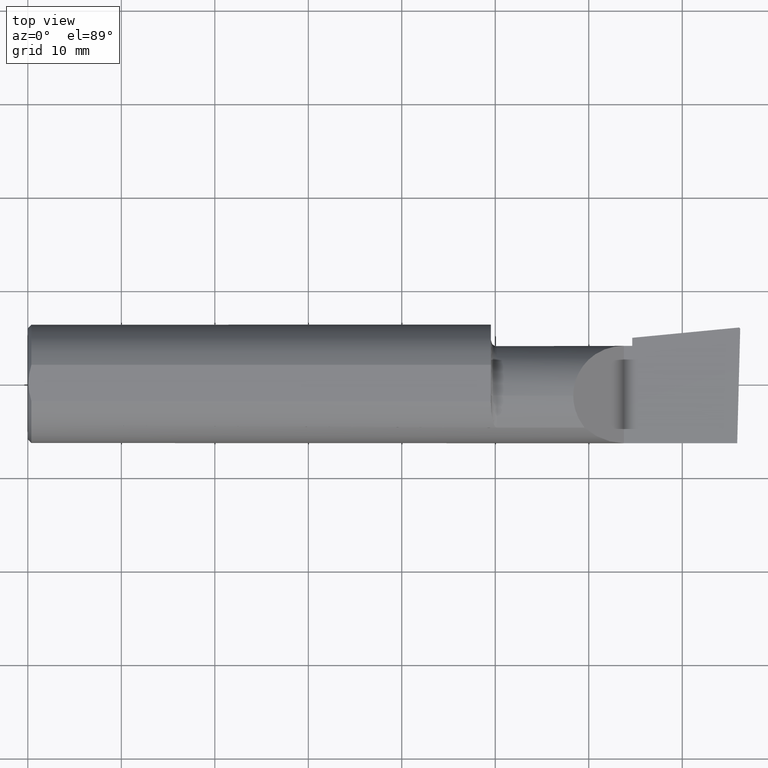
[diagram: clean part render]
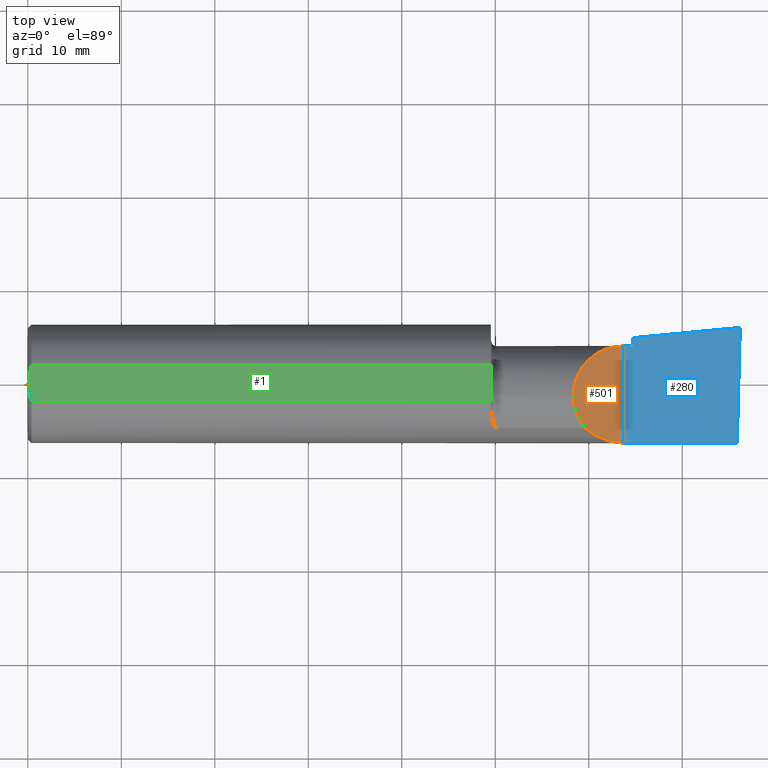
[diagram: same view with three faces highlighted in distinct colors, each labeled with its STEP entity id]
A machine part, top view with three faces highlighted in distinct colors.
Their STEP definitions:

[orange] entity #501 — the highlighted planar face has unit normal (-0.7071, 0, -0.7071).
#12 = EDGE_CURVE ( 'NONE', #95, #238, #275, .T. ) ;
#17 = ORIENTED_EDGE ( 'NONE', *, *, #169, .F. ) ;
#33 = CARTESIAN_POINT ( 'NONE',  ( 2.448145753305722927, -0.2498500000000000165, 0.06185424669427665861 ) ) ;
#51 = CARTESIAN_POINT ( 'NONE',  ( 2.390325100969863392, -0.2278791102234763166, 0.1196748990301357285 ) ) ;
#95 = VERTEX_POINT ( 'NONE', #771 ) ;
#106 = CARTESIAN_POINT ( 'NONE',  ( 2.344079160038586185, -0.1868028301886760500, 0.1659208399614119644 ) ) ;
#108 = DIRECTION ( 'NONE',  ( -0.7071067811865436870, 0.000000000000000000, -0.7071067811865514585 ) ) ;
#169 = EDGE_CURVE ( 'NONE', #238, #240, #774, .T. ) ;
#198 = CARTESIAN_POINT ( 'NONE',  ( 2.344079160038586185, -0.1868028301886760500, 0.1659208399614119644 ) ) ;
#199 = ORIENTED_EDGE ( 'NONE', *, *, #417, .T. ) ;
#230 = CARTESIAN_POINT ( 'NONE',  ( 2.510000000000000231, -0.2498499999999999610, 6.000769315822035917E-17 ) ) ;
#238 = VERTEX_POINT ( 'NONE', #198 ) ;
#240 = VERTEX_POINT ( 'NONE', #597 ) ;
#263 = DIRECTION ( 'NONE',  ( -0.7071067811865513475, 0.000000000000000000, 0.7071067811865435759 ) ) ;
#275 =( BOUNDED_CURVE ( )  B_SPLINE_CURVE ( 3, ( #230, #33, #51, #106 ),
 .UNSPECIFIED., .F., .T. ) 
 B_SPLINE_CURVE_WITH_KNOTS ( ( 4, 4 ),
 ( 4.712388980384689674, 5.438654041019590935 ),
 .UNSPECIFIED. ) 
 CURVE ( )  GEOMETRIC_REPRESENTATION_ITEM ( )  RATIONAL_B_SPLINE_CURVE ( ( 1.000000000000000000, 0.9565258159410974237, 0.9565258159410974237, 1.000000000000000000 ) ) 
 REPRESENTATION_ITEM ( '' )  );
#279 = CARTESIAN_POINT ( 'NONE',  ( 2.510000000000000231, 0.1601499999999999035, 6.000769315822035917E-17 ) ) ;
#287 = CARTESIAN_POINT ( 'NONE',  ( 2.385139620819824113, 0.1601499999999999591, 0.1248603791801747992 ) ) ;
#299 =( BOUNDED_CURVE ( )  B_SPLINE_CURVE ( 3, ( #755, #354, #287, #484 ),
 .UNSPECIFIED., .F., .T. ) 
 B_SPLINE_CURVE_WITH_KNOTS ( ( 4, 4 ),
 ( 0.000000000000000000, 1.570796326794896558 ),
 .UNSPECIFIED. ) 
 CURVE ( )  GEOMETRIC_REPRESENTATION_ITEM ( )  RATIONAL_B_SPLINE_CURVE ( ( 1.000000000000000000, 0.8047378541243649375, 0.8047378541243649375, 1.000000000000000000 ) ) 
 REPRESENTATION_ITEM ( '' )  );
#331 = ORIENTED_EDGE ( 'NONE', *, *, #12, .F. ) ;
#350 = VECTOR ( 'NONE', #787, 39.37007874015748143 ) ;
#354 = CARTESIAN_POINT ( 'NONE',  ( 2.296849999999997838, 0.07186037918017477988, 0.2131500000000000061 ) ) ;
#383 = FACE_OUTER_BOUND ( 'NONE', #754, .T. ) ;
#388 = LINE ( 'NONE', #861, #350 ) ;
#408 = CARTESIAN_POINT ( 'NONE',  ( 2.296849999999997838, -0.05299999999999998462, 0.2131499999999999506 ) ) ;
#417 = EDGE_CURVE ( 'NONE', #95, #618, #388, .T. ) ;
#465 = CARTESIAN_POINT ( 'NONE',  ( 2.313215146136121447, -0.1485302233682029571, 0.1967848538638767297 ) ) ;
#484 = CARTESIAN_POINT ( 'NONE',  ( 2.510000000000000231, 0.1601499999999999035, 6.000769315822035917E-17 ) ) ;
#501 = ADVANCED_FACE ( 'NONE', ( #383 ), #650, .F. ) ;
#523 = CARTESIAN_POINT ( 'NONE',  ( 2.296849999999997838, -0.1021668565906553305, 0.2131500000000000061 ) ) ;
#593 = AXIS2_PLACEMENT_3D ( 'NONE', #782, #108, #263 ) ;
#597 = CARTESIAN_POINT ( 'NONE',  ( 2.296849999999997838, -0.05299999999999998462, 0.2131499999999999506 ) ) ;
#618 = VERTEX_POINT ( 'NONE', #279 ) ;
#650 = PLANE ( 'NONE',  #593 ) ;
#654 = EDGE_CURVE ( 'NONE', #240, #618, #299, .T. ) ;
#671 = CARTESIAN_POINT ( 'NONE',  ( 2.344079160038586185, -0.1868028301886760500, 0.1659208399614119644 ) ) ;
#744 = ORIENTED_EDGE ( 'NONE', *, *, #654, .F. ) ;
#754 = EDGE_LOOP ( 'NONE', ( #17, #331, #199, #744 ) ) ;
#755 = CARTESIAN_POINT ( 'NONE',  ( 2.296849999999997838, -0.05299999999999998462, 0.2131499999999999506 ) ) ;
#771 = CARTESIAN_POINT ( 'NONE',  ( 2.510000000000000231, -0.2498499999999999610, 6.000769315822035917E-17 ) ) ;
#774 =( BOUNDED_CURVE ( )  B_SPLINE_CURVE ( 3, ( #671, #465, #523, #408 ),
 .UNSPECIFIED., .F., .T. ) 
 B_SPLINE_CURVE_WITH_KNOTS ( ( 4, 4 ),
 ( 5.604538515477369032, 6.283185307179586232 ),
 .UNSPECIFIED. ) 
 CURVE ( )  GEOMETRIC_REPRESENTATION_ITEM ( )  RATIONAL_B_SPLINE_CURVE ( ( 1.000000000000000000, 0.9619867256453048521, 0.9619867256453048521, 1.000000000000000000 ) ) 
 REPRESENTATION_ITEM ( '' )  );
#782 = CARTESIAN_POINT ( 'NONE',  ( 2.510000000000000231, -0.2500000000000000555, 6.000769315822035917E-17 ) ) ;
#787 = DIRECTION ( 'NONE',  ( -0.000000000000000000, 1.000000000000000000, -0.000000000000000000 ) ) ;
#861 = CARTESIAN_POINT ( 'NONE',  ( 2.510000000000000231, -0.2500000000000000555, 6.000769315822035917E-17 ) ) ;

[blue] entity #280 — the highlighted planar face has unit normal (-0, 0, -1).
#3 = DIRECTION ( 'NONE',  ( 0.9953961983671787417, 0.09584575252022459191, -2.606391986280347847E-16 ) ) ;
#16 = EDGE_CURVE ( 'NONE', #224, #489, #374, .T. ) ;
#25 = FACE_OUTER_BOUND ( 'NONE', #579, .T. ) ;
#47 = DIRECTION ( 'NONE',  ( 0.02617694830786375729, 0.9996573249755575929, -6.752493720234686897E-18 ) ) ;
#59 =( BOUNDED_CURVE ( )  B_SPLINE_CURVE ( 3, ( #65, #789, #739, #653 ),
 .UNSPECIFIED., .F., .T. ) 
 B_SPLINE_CURVE_WITH_KNOTS ( ( 4, 4 ),
 ( 1.953092279228479944, 3.511516179717668606 ),
 .UNSPECIFIED. ) 
 CURVE ( )  GEOMETRIC_REPRESENTATION_ITEM ( )  RATIONAL_B_SPLINE_CURVE ( ( 1.000000000000000000, 0.8076450242550571312, 0.8076450242550571312, 1.000000000000000000 ) ) 
 REPRESENTATION_ITEM ( '' )  );
#65 = CARTESIAN_POINT ( 'NONE',  ( 2.999806390372777187, 0.2307563466314208889, -6.819658003834520064E-17 ) ) ;
#73 = ORIENTED_EDGE ( 'NONE', *, *, #784, .F. ) ;
#74 = CARTESIAN_POINT ( 'NONE',  ( 2.993512870449312135, 0.2374961668063718667, -6.829619984160658046E-17 ) ) ;
#77 = CARTESIAN_POINT ( 'NONE',  ( 2.545000000000000373, -0.2500000000000000555, 5.084312937251844195E-17 ) ) ;
#95 = VERTEX_POINT ( 'NONE', #771 ) ;
#96 = LINE ( 'NONE', #297, #243 ) ;
#127 = VECTOR ( 'NONE', #47, 39.37007874015748854 ) ;
#134 = VERTEX_POINT ( 'NONE', #266 ) ;
#143 = ORIENTED_EDGE ( 'NONE', *, *, #347, .F. ) ;
#171 = VERTEX_POINT ( 'NONE', #516 ) ;
#173 = CARTESIAN_POINT ( 'NONE',  ( 2.993310817358674214, 0.2374961668063718667, -6.831130739536553237E-17 ) ) ;
#174 = LINE ( 'NONE', #77, #705 ) ;
#191 = EDGE_CURVE ( 'NONE', #489, #588, #59, .T. ) ;
#220 = VECTOR ( 'NONE', #368, 39.37007874015748143 ) ;
#224 = VERTEX_POINT ( 'NONE', #460 ) ;
#243 = VECTOR ( 'NONE', #367, 39.37007874015748143 ) ;
#266 = CARTESIAN_POINT ( 'NONE',  ( 2.545000000000000373, 0.1943384830701264110, 7.172376958449230963E-16 ) ) ;
#279 = CARTESIAN_POINT ( 'NONE',  ( 2.510000000000000231, 0.1601499999999999035, 6.000769315822035917E-17 ) ) ;
#280 = ADVANCED_FACE ( 'NONE', ( #25 ), #428, .F. ) ;
#286 = ORIENTED_EDGE ( 'NONE', *, *, #191, .T. ) ;
#297 = CARTESIAN_POINT ( 'NONE',  ( 1.878049121262586821E-31, -0.2498499999999999610, 7.172378389328440442E-16 ) ) ;
#310 = CARTESIAN_POINT ( 'NONE',  ( 2.993108609909221229, 0.2374864346074009314, -6.825836045055233299E-17 ) ) ;
#345 = DIRECTION ( 'NONE',  ( 0.000000000000000000, 1.000000000000000000, 0.000000000000000000 ) ) ;
#347 = EDGE_CURVE ( 'NONE', #618, #171, #770, .T. ) ;
#350 = VECTOR ( 'NONE', #787, 39.37007874015748143 ) ;
#352 = EDGE_CURVE ( 'NONE', #171, #134, #174, .T. ) ;
#363 = DIRECTION ( 'NONE',  ( -1.000000000000000000, 0.000000000000000000, 2.618446795914836237E-16 ) ) ;
#367 = DIRECTION ( 'NONE',  ( -1.000000000000000000, -0.000000000000000000, -0.000000000000000000 ) ) ;
#368 = DIRECTION ( 'NONE',  ( 1.000000000000000000, 0.000000000000000000, 0.000000000000000000 ) ) ;
#371 = DIRECTION ( 'NONE',  ( -2.618446795914836237E-16, 0.000000000000000000, -1.000000000000000000 ) ) ;
#374 = LINE ( 'NONE', #844, #127 ) ;
#384 = ORIENTED_EDGE ( 'NONE', *, *, #797, .T. ) ;
#388 = LINE ( 'NONE', #861, #350 ) ;
#417 = EDGE_CURVE ( 'NONE', #95, #618, #388, .T. ) ;
#421 = CARTESIAN_POINT ( 'NONE',  ( 2.992906680581890466, 0.2374669910246690607, -6.643885189133189626E-17 ) ) ;
#428 = PLANE ( 'NONE',  #841 ) ;
#432 = CARTESIAN_POINT ( 'NONE',  ( 1.878049121262586821E-31, 0.1601499999999999313, 7.172378389328440442E-16 ) ) ;
#446 = CARTESIAN_POINT ( 'NONE',  ( 2.999806390372777187, 0.2307563466314208889, -6.819658003834520064E-17 ) ) ;
#460 = CARTESIAN_POINT ( 'NONE',  ( 2.987221270274237561, -0.2498499999999999888, -6.495017623931042258E-17 ) ) ;
#461 = VECTOR ( 'NONE', #3, 39.37007874015748143 ) ;
#489 = VERTEX_POINT ( 'NONE', #446 ) ;
#500 = CARTESIAN_POINT ( 'NONE',  ( 2.993512870449312135, 0.2374961668063718667, -6.829619984160658046E-17 ) ) ;
#516 = CARTESIAN_POINT ( 'NONE',  ( 2.545000000000000373, 0.1601499999999999591, 7.172378389328441428E-16 ) ) ;
#561 = ORIENTED_EDGE ( 'NONE', *, *, #16, .T. ) ;
#579 = EDGE_LOOP ( 'NONE', ( #561, #286, #384, #808, #860, #143, #768, #73 ) ) ;
#588 = VERTEX_POINT ( 'NONE', #74 ) ;
#595 = LINE ( 'NONE', #673, #461 ) ;
#618 = VERTEX_POINT ( 'NONE', #279 ) ;
#643 = EDGE_CURVE ( 'NONE', #134, #686, #595, .T. ) ;
#653 = CARTESIAN_POINT ( 'NONE',  ( 2.993512870449312135, 0.2374961668063718667, -6.829619984160658046E-17 ) ) ;
#673 = CARTESIAN_POINT ( 'NONE',  ( -0.02370835988220531057, -0.05299999999999998462, 7.234457468298397131E-16 ) ) ;
#686 = VERTEX_POINT ( 'NONE', #421 ) ;
#687 =( BOUNDED_CURVE ( )  B_SPLINE_CURVE ( 3, ( #500, #173, #310, #769 ),
 .UNSPECIFIED., .F., .T. ) 
 B_SPLINE_CURVE_WITH_KNOTS ( ( 4, 4 ),
 ( 3.511516179717668606, 3.604018710826268457 ),
 .UNSPECIFIED. ) 
 CURVE ( )  GEOMETRIC_REPRESENTATION_ITEM ( )  RATIONAL_B_SPLINE_CURVE ( ( 1.000000000000000000, 0.9992870672494007511, 0.9992870672494007511, 1.000000000000000000 ) ) 
 REPRESENTATION_ITEM ( '' )  );
#705 = VECTOR ( 'NONE', #345, 39.37007874015748143 ) ;
#739 = CARTESIAN_POINT ( 'NONE',  ( 2.997312560284822069, 0.2374961668063717835, -6.935914248967012631E-17 ) ) ;
#743 = CARTESIAN_POINT ( 'NONE',  ( 3.000000000000000444, -0.2500000000000000555, -6.829619984160658046E-17 ) ) ;
#768 = ORIENTED_EDGE ( 'NONE', *, *, #417, .F. ) ;
#769 = CARTESIAN_POINT ( 'NONE',  ( 2.992906680581890466, 0.2374669910246690607, -6.643885189133189626E-17 ) ) ;
#770 = LINE ( 'NONE', #432, #220 ) ;
#771 = CARTESIAN_POINT ( 'NONE',  ( 2.510000000000000231, -0.2498499999999999610, 6.000769315822035917E-17 ) ) ;
#784 = EDGE_CURVE ( 'NONE', #224, #95, #96, .T. ) ;
#787 = DIRECTION ( 'NONE',  ( -0.000000000000000000, 1.000000000000000000, -0.000000000000000000 ) ) ;
#789 = CARTESIAN_POINT ( 'NONE',  ( 2.999910038027501891, 0.2347144908750975478, -7.003927821694808092E-17 ) ) ;
#797 = EDGE_CURVE ( 'NONE', #588, #686, #687, .T. ) ;
#808 = ORIENTED_EDGE ( 'NONE', *, *, #643, .F. ) ;
#841 = AXIS2_PLACEMENT_3D ( 'NONE', #743, #371, #363 ) ;
#844 = CARTESIAN_POINT ( 'NONE',  ( 2.987226101480004559, -0.2496655036952227791, -6.495142247650418772E-17 ) ) ;
#860 = ORIENTED_EDGE ( 'NONE', *, *, #352, .F. ) ;
#861 = CARTESIAN_POINT ( 'NONE',  ( 2.510000000000000231, -0.2500000000000000555, 6.000769315822035917E-17 ) ) ;

[green] entity #1 — the highlighted planar face has unit normal (0, -0, -1).
#1 = ADVANCED_FACE ( 'NONE', ( #572 ), #452, .F. ) ;
#6 = CARTESIAN_POINT ( 'NONE',  ( 0.004092330037930667214, 0.02606142970188504368, 0.2378500000000000059 ) ) ;
#7 = VERTEX_POINT ( 'NONE', #700 ) ;
#13 = DIRECTION ( 'NONE',  ( -1.000000000000000000, -0.000000000000000000, -0.000000000000000000 ) ) ;
#49 = CARTESIAN_POINT ( 'NONE',  ( 1.950000000000000178, -0.04105010460296977526, 0.2378500000000000059 ) ) ;
#67 = CARTESIAN_POINT ( 'NONE',  ( 0.003000000000000035624, 4.000211044293764417E-17, 0.2378500000000000059 ) ) ;
#70 = LINE ( 'NONE', #865, #124 ) ;
#79 = CARTESIAN_POINT ( 'NONE',  ( 0.003000000000000061211, -0.01298133447204027208, 0.2378500000000000614 ) ) ;
#103 = LINE ( 'NONE', #357, #192 ) ;
#110 = AXIS2_PLACEMENT_3D ( 'NONE', #316, #301, #496 ) ;
#116 = EDGE_CURVE ( 'NONE', #672, #483, #759, .T. ) ;
#122 = CARTESIAN_POINT ( 'NONE',  ( 0.01120763235350242214, 0.06411521680875356677, 0.2378500000000000336 ) ) ;
#124 = VECTOR ( 'NONE', #338, 39.37007874015748143 ) ;
#138 = CARTESIAN_POINT ( 'NONE',  ( 0.008199648822849016708, 0.05156445313451110679, 0.2378500000000000059 ) ) ;
#160 = ORIENTED_EDGE ( 'NONE', *, *, #252, .F. ) ;
#185 = CARTESIAN_POINT ( 'NONE',  ( 0.003000000000000063380, 0.01299872814765626154, 0.2378499999999999226 ) ) ;
#186 = ORIENTED_EDGE ( 'NONE', *, *, #599, .F. ) ;
#192 = VECTOR ( 'NONE', #753, 39.37007874015748143 ) ;
#200 = CARTESIAN_POINT ( 'NONE',  ( 0.000000000000000000, -0.07650098038587496707, 0.2378499999999999226 ) ) ;
#208 = CARTESIAN_POINT ( 'NONE',  ( 1.950000000000000178, -0.06096394231309279488, 0.2378500000000000059 ) ) ;
#217 = ORIENTED_EDGE ( 'NONE', *, *, #116, .F. ) ;
#219 = CARTESIAN_POINT ( 'NONE',  ( 1.950000000000000178, -0.06494989539703015236, 0.2378500000000000059 ) ) ;
#225 = CARTESIAN_POINT ( 'NONE',  ( 0.003000000000000035624, 4.000211044293764417E-17, 0.2378500000000000059 ) ) ;
#234 = ORIENTED_EDGE ( 'NONE', *, *, #683, .F. ) ;
#250 = CARTESIAN_POINT ( 'NONE',  ( 1.950000900032402340, -0.05299999999999998462, 0.2378500000000221548 ) ) ;
#252 = EDGE_CURVE ( 'NONE', #445, #697, #355, .T. ) ;
#271 = CARTESIAN_POINT ( 'NONE',  ( 1.950001800093990711, -0.05698398688203977491, 0.2378499975680403167 ) ) ;
#273 = CARTESIAN_POINT ( 'NONE',  ( 0.008160184410935168720, -0.05138200716576601240, 0.2378500000000000614 ) ) ;
#301 = DIRECTION ( 'NONE',  ( 0.000000000000000000, -1.138839417068644240E-16, -1.000000000000000000 ) ) ;
#316 = CARTESIAN_POINT ( 'NONE',  ( 3.000000000000000444, 0.2998500000000000609, 0.2378499999999999504 ) ) ;
#317 = ORIENTED_EDGE ( 'NONE', *, *, #509, .F. ) ;
#327 = VERTEX_POINT ( 'NONE', #826 ) ;
#338 = DIRECTION ( 'NONE',  ( 0.000000000000000000, -1.000000000000000000, 1.138839417068644240E-16 ) ) ;
#355 = B_SPLINE_CURVE_WITH_KNOTS ( 'NONE', 3,
 ( #699, #271, #208, #811 ),
 .UNSPECIFIED., .F., .F.,
 ( 4, 4 ),
 ( 0.4999999999997257194, 1.000000000000000000 ),
 .UNSPECIFIED. ) ;
#357 = CARTESIAN_POINT ( 'NONE',  ( 1.950000000000000178, 0.2998500000000000609, 0.2378499999999999504 ) ) ;
#401 = CARTESIAN_POINT ( 'NONE',  ( 0.01120982745448973784, -0.06412238594540853320, 0.2378500000000000059 ) ) ;
#405 = LINE ( 'NONE', #543, #447 ) ;
#410 = CARTESIAN_POINT ( 'NONE',  ( 0.004068542164723867871, -0.02585015905295367025, 0.2378500000000000059 ) ) ;
#412 = EDGE_CURVE ( 'NONE', #7, #445, #703, .T. ) ;
#445 = VERTEX_POINT ( 'NONE', #250 ) ;
#447 = VECTOR ( 'NONE', #479, 39.37007874015748143 ) ;
#451 = CARTESIAN_POINT ( 'NONE',  ( 1.950000000000000178, -0.04503596074371225139, 0.2378500000000000059 ) ) ;
#452 = PLANE ( 'NONE',  #110 ) ;
#456 = CARTESIAN_POINT ( 'NONE',  ( 0.003000000000000035624, 4.000211044293764417E-17, 0.2378500000000000059 ) ) ;
#468 = CARTESIAN_POINT ( 'NONE',  ( 0.01499999999998188026, -0.07650098038590467941, 0.2378500000000000059 ) ) ;
#473 = CARTESIAN_POINT ( 'NONE',  ( 0.01499999999999999771, 0.07650098038587500870, 0.2378499999999999226 ) ) ;
#479 = DIRECTION ( 'NONE',  ( 1.000000000000000000, 0.000000000000000000, 0.000000000000000000 ) ) ;
#481 = VERTEX_POINT ( 'NONE', #645 ) ;
#483 = VERTEX_POINT ( 'NONE', #586 ) ;
#496 = DIRECTION ( 'NONE',  ( 0.000000000000000000, 1.000000000000000000, -1.138839417068644240E-16 ) ) ;
#509 = EDGE_CURVE ( 'NONE', #327, #594, #664, .T. ) ;
#515 = EDGE_CURVE ( 'NONE', #483, #481, #405, .T. ) ;
#534 = ORIENTED_EDGE ( 'NONE', *, *, #631, .F. ) ;
#543 = CARTESIAN_POINT ( 'NONE',  ( 0.000000000000000000, 0.07650098038587500870, 0.2378499999999999226 ) ) ;
#572 = FACE_OUTER_BOUND ( 'NONE', #585, .T. ) ;
#576 = ORIENTED_EDGE ( 'NONE', *, *, #412, .F. ) ;
#585 = EDGE_LOOP ( 'NONE', ( #234, #717, #217, #534, #317, #186, #160, #576 ) ) ;
#586 = CARTESIAN_POINT ( 'NONE',  ( 0.01499999999999999771, 0.07650098038587500870, 0.2378499999999999226 ) ) ;
#594 = VERTEX_POINT ( 'NONE', #468 ) ;
#599 = EDGE_CURVE ( 'NONE', #697, #327, #70, .T. ) ;
#631 = EDGE_CURVE ( 'NONE', #594, #672, #711, .T. ) ;
#645 = CARTESIAN_POINT ( 'NONE',  ( 1.950000000000000178, 0.07650098038587503646, 0.2378500000000000059 ) ) ;
#664 = LINE ( 'NONE', #200, #853 ) ;
#672 = VERTEX_POINT ( 'NONE', #225 ) ;
#683 = EDGE_CURVE ( 'NONE', #481, #7, #103, .T. ) ;
#697 = VERTEX_POINT ( 'NONE', #219 ) ;
#699 = CARTESIAN_POINT ( 'NONE',  ( 1.950000900032402340, -0.05299999999999998462, 0.2378500000000221548 ) ) ;
#700 = CARTESIAN_POINT ( 'NONE',  ( 1.950000000000000178, -0.04105010460296977526, 0.2378500000000000059 ) ) ;
#703 = B_SPLINE_CURVE_WITH_KNOTS ( 'NONE', 3,
 ( #49, #451, #713, #710 ),
 .UNSPECIFIED., .F., .F.,
 ( 4, 4 ),
 ( 0.000000000000000000, 0.4999999999997257194 ),
 .UNSPECIFIED. ) ;
#710 = CARTESIAN_POINT ( 'NONE',  ( 1.950000900032402340, -0.05299999999999998462, 0.2378500000000221548 ) ) ;
#711 = B_SPLINE_CURVE_WITH_KNOTS ( 'NONE', 3,
 ( #818, #401, #273, #410, #79, #67 ),
 .UNSPECIFIED., .F., .F.,
 ( 4, 2, 4 ),
 ( 0.002692677063605044066, 0.003672889278957895340, 0.004653101494310745746 ),
 .UNSPECIFIED. ) ;
#713 = CARTESIAN_POINT ( 'NONE',  ( 1.950001800035618071, -0.04901601311796456584, 0.2378500024320483464 ) ) ;
#717 = ORIENTED_EDGE ( 'NONE', *, *, #515, .F. ) ;
#753 = DIRECTION ( 'NONE',  ( 0.000000000000000000, -1.000000000000000000, 1.138839417068644240E-16 ) ) ;
#759 = B_SPLINE_CURVE_WITH_KNOTS ( 'NONE', 3,
 ( #456, #185, #6, #138, #122, #473 ),
 .UNSPECIFIED., .F., .F.,
 ( 4, 2, 4 ),
 ( 0.004653101494310745746, 0.005634627094920352519, 0.006616152695529959292 ),
 .UNSPECIFIED. ) ;
#811 = CARTESIAN_POINT ( 'NONE',  ( 1.950000000000000178, -0.06494989539703015236, 0.2378500000000000059 ) ) ;
#818 = CARTESIAN_POINT ( 'NONE',  ( 0.01499999999998188026, -0.07650098038590467941, 0.2378500000000000059 ) ) ;
#826 = CARTESIAN_POINT ( 'NONE',  ( 1.950000000000000178, -0.07650098038590473493, 0.2378500000000000059 ) ) ;
#853 = VECTOR ( 'NONE', #13, 39.37007874015748143 ) ;
#865 = CARTESIAN_POINT ( 'NONE',  ( 1.950000000000000178, 0.2998500000000000609, 0.2378499999999999504 ) ) ;